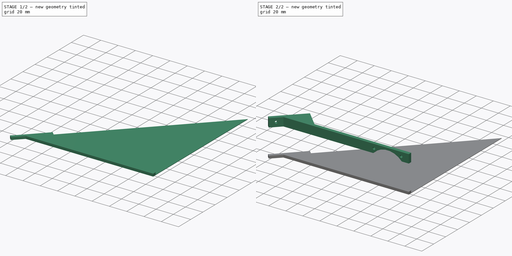
[diagram: build sequence overview — one tinted view per stage of 2, left to right]
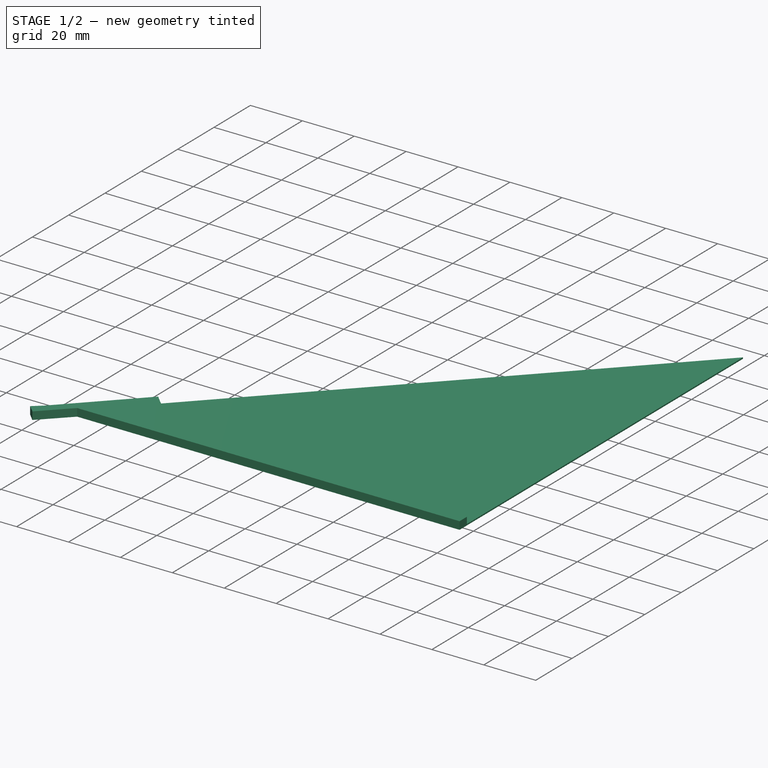
[diagram: stage 1 of 2 — iso view after this stage's code; geometry added in this stage tinted green]
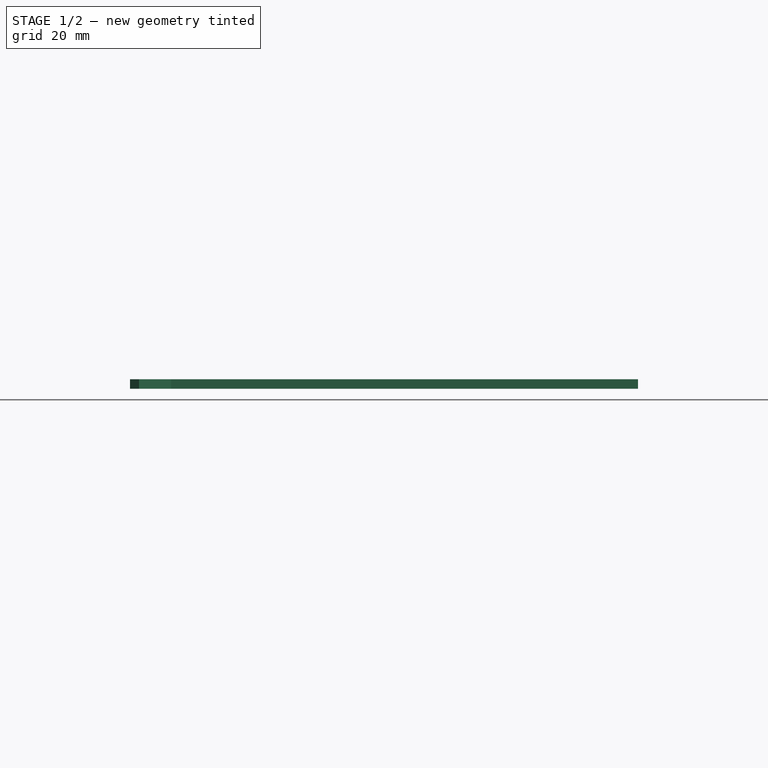
[diagram: stage 1 of 2 — front view after this stage's code; geometry added in this stage tinted green]
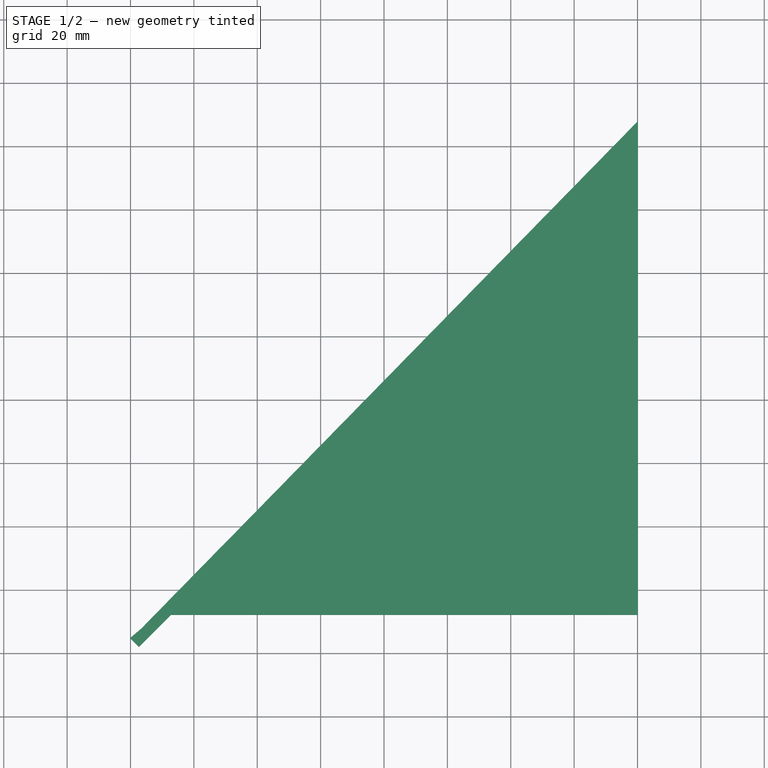
[diagram: stage 1 of 2 — top view after this stage's code; geometry added in this stage tinted green]
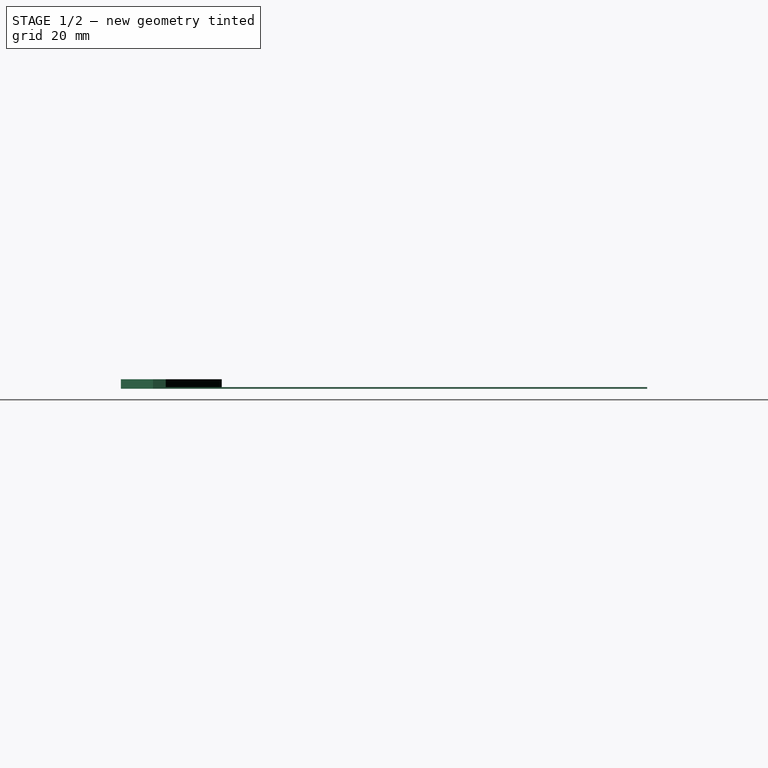
[diagram: stage 1 of 2 — right view after this stage's code; geometry added in this stage tinted green]
FCSTD DOCUMENT  (FreeCAD 0.14R2935 (Git))
Label: ventilador-metra
License: CC-BY 3.0
LicenseURL: http://creativecommons.org/licenses/by/3.0/
objects: Part::Feature×1, Part::Mirroring×1, Part::FeaturePython×1, Part::Extrusion×1, Sketcher::SketchObject×1, PartDesign::Pad×1
note: 7 computed .brp shape members not serialized (recipe doc carries the construction recipe); baked Part::Feature solids carry a one-line shape summary decoded from their .brp

FEATURE [Part::FeaturePython] Facebinder  # WARN: FeaturePython — macro-defined, semantics opaque (R4)
  Faces = -> [Solid001]
FEATURE [Part::Extrusion] Extrude
  Base = -> Facebinder
  Dir = (0,0,-3)
  Solid = false
FEATURE [Sketcher::SketchObject] Sketch
  ExternalGeometry = -> [Extrude]
  Placement = pos=(0,0,-3) rot=(1,0,0;3.14159rad)
  Support = -> Extrude [Face22]
  sketch-geometry (4):
    g0: LineSegment StartX=-51.1628 StartY=-33.8198 StartZ=0 EndX=80.1543 EndY=-168.062 EndZ=0
    g1: LineSegment StartX=80.1543 StartY=-168.062 StartZ=0 EndX=80.1543 EndY=-16.1422 EndZ=0
    g2: LineSegment StartX=80.1543 StartY=-16.1422 StartZ=0 EndX=-33.4854 EndY=-16.1422 EndZ=0
    g3: LineSegment StartX=-33.4854 StartY=-16.1422 StartZ=0 EndX=-51.1628 EndY=-33.8198 EndZ=0
  constraints (9):
    c: Coincident(g-3,g0)
    c: Coincident(g0,g1)
    c: Coincident(g1,g-4)
    c: Coincident(g1,g2)
    c: Coincident(g2,g-4)
    c: Coincident(g2,g3)
    c: Coincident(g3,g0)
    c: Parallel(g-3,g0)
    c: Vertical(g1)
FEATURE [PartDesign::Pad] Pad
  Length = 0.5
  Length2 = 100
  Reversed = true
  Sketch = -> Sketch
  Type = 0
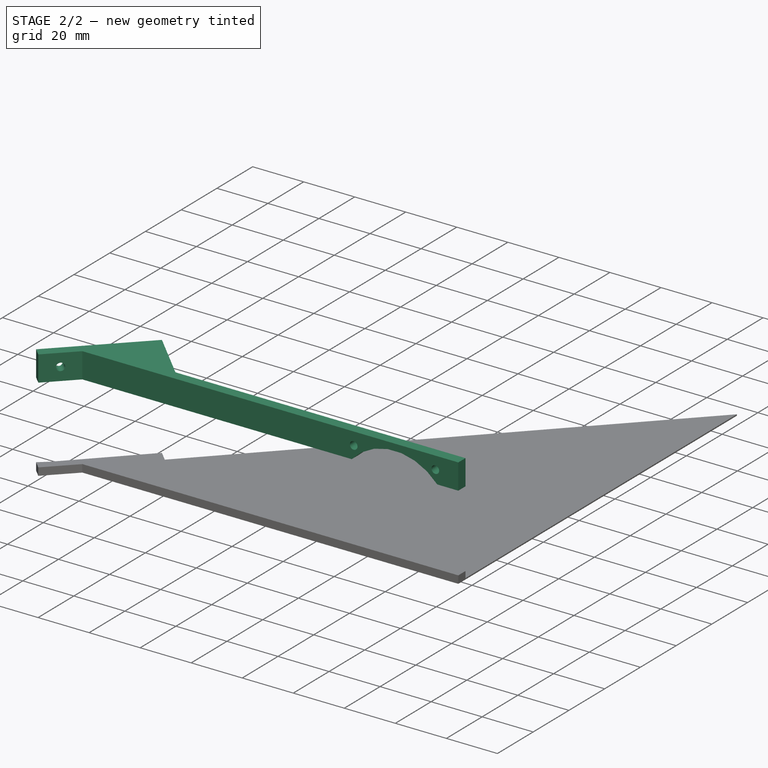
[diagram: stage 2 of 2 — iso view after this stage's code; geometry added in this stage tinted green]
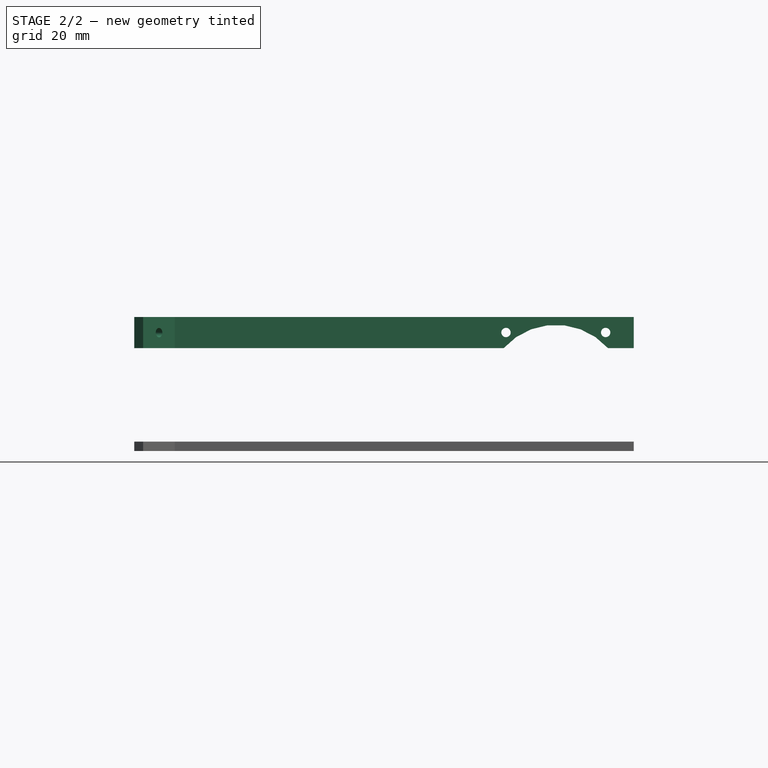
[diagram: stage 2 of 2 — front view after this stage's code; geometry added in this stage tinted green]
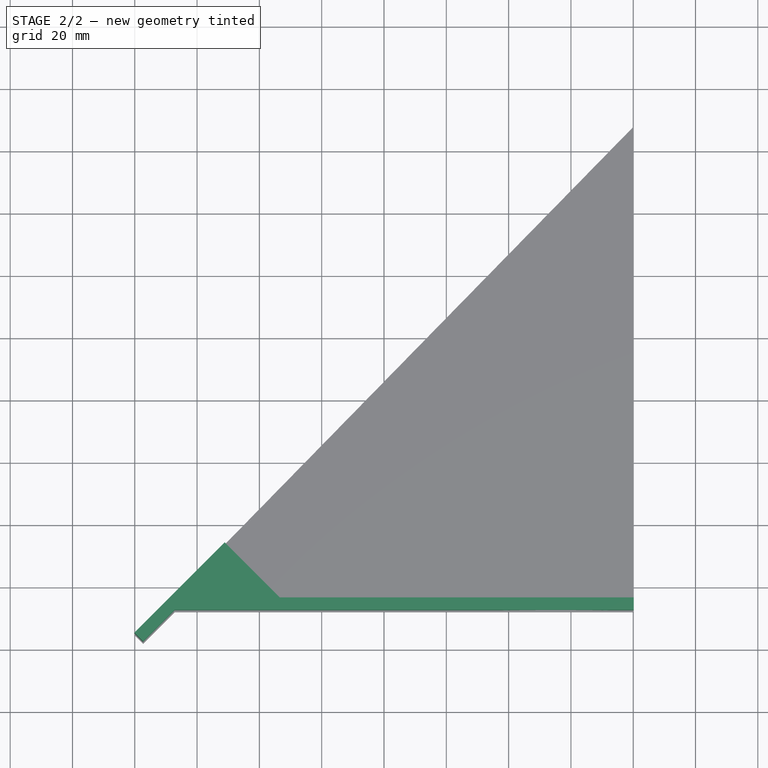
[diagram: stage 2 of 2 — top view after this stage's code; geometry added in this stage tinted green]
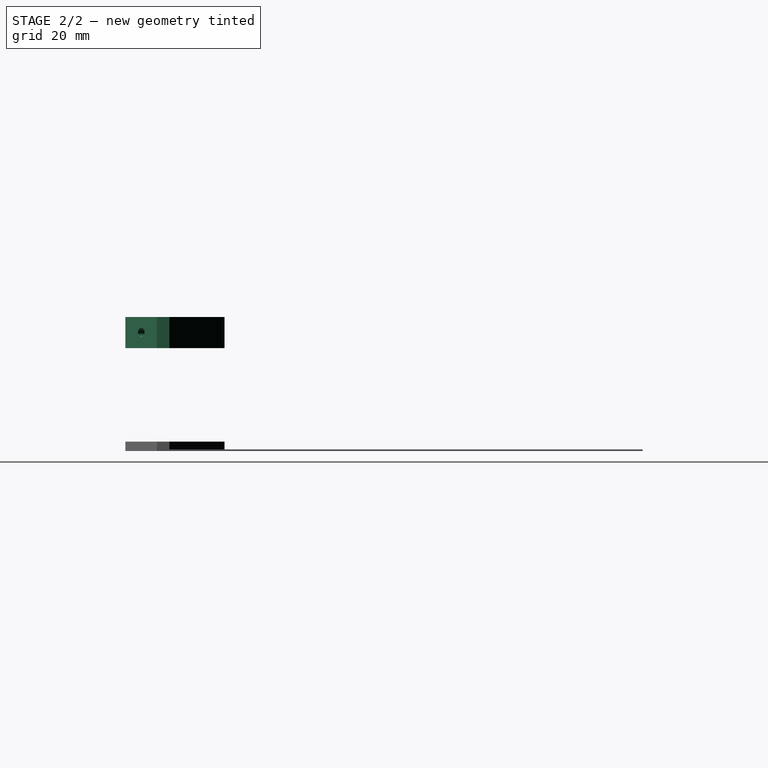
[diagram: stage 2 of 2 — right view after this stage's code; geometry added in this stage tinted green]
FEATURE [Part::Feature] Solid001
  shape: bbox 160.3 x 31.82 x 10 mm, 1144 faces (baked)
FEATURE [Part::Mirroring] Part__Mirroring  label="Solid001 (Mirror #1)"
  Base = (0,0,0)
  Normal = (0,0,1)
  Placement = pos=(0,0,40) rot=(0,0,1;0rad)
  Source = -> Solid001
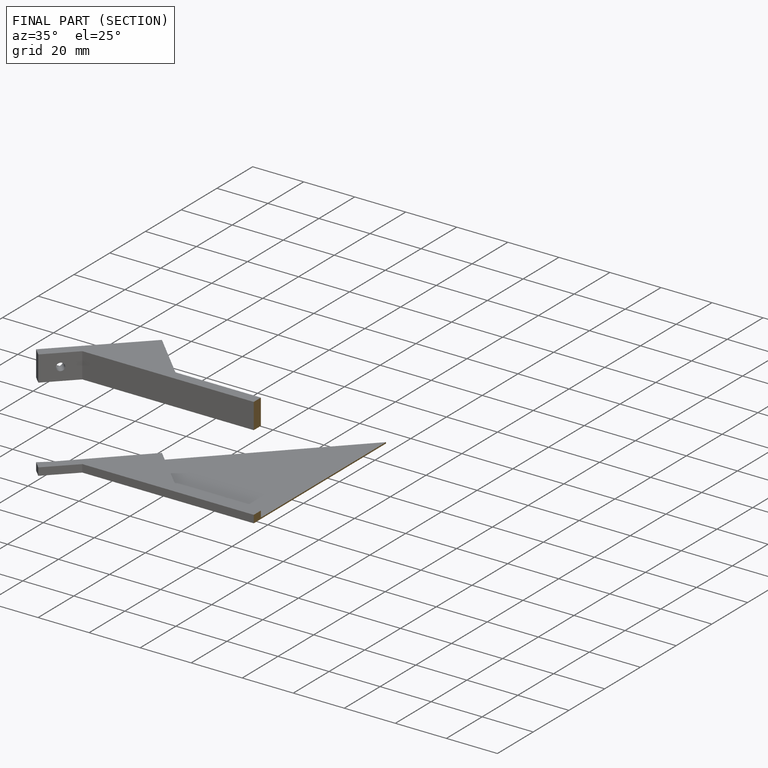
[diagram: finished part — half-section view (interior)]
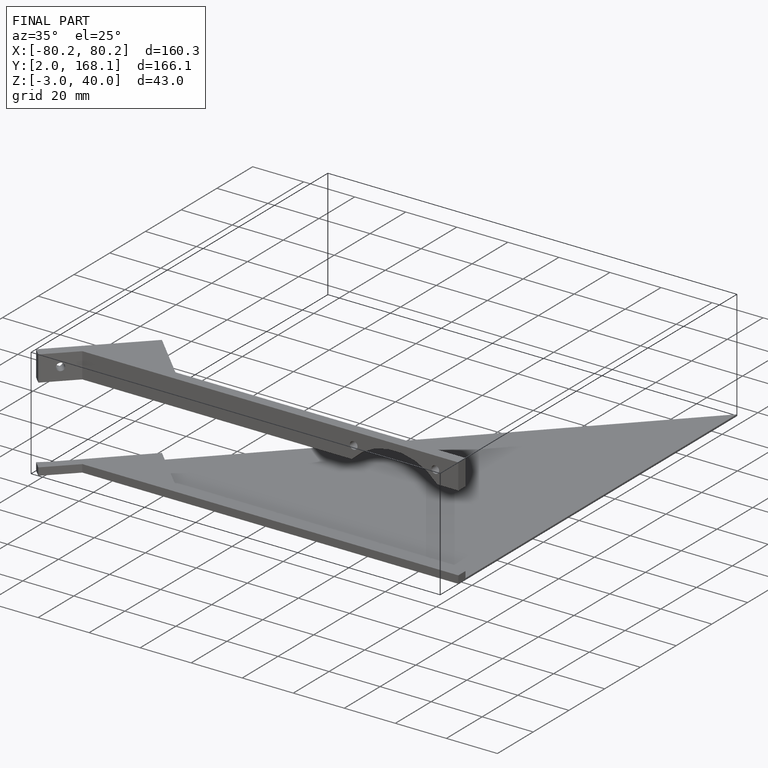
[diagram: finished part — iso view with bounding-box wireframe]
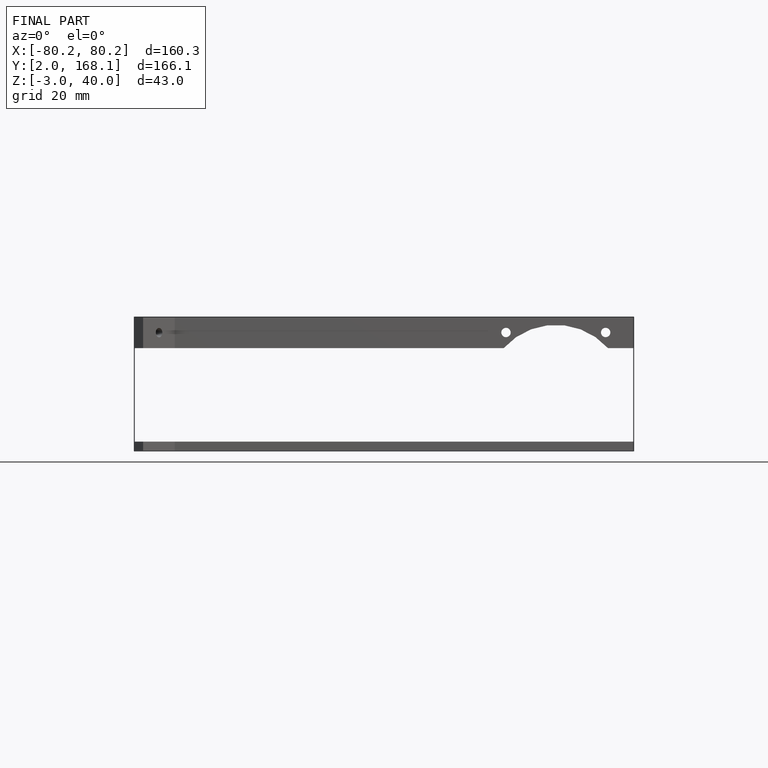
[diagram: finished part — front view with bounding-box wireframe]
